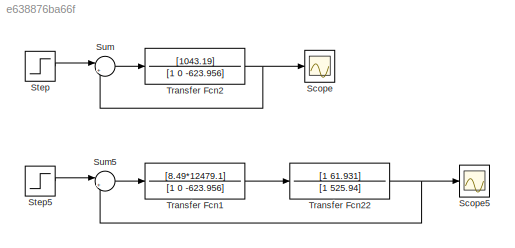
MODEL slx_e638876ba66f
KIND model
CONFIG AbsTol = auto
CONFIG EnableMultiTasking = off
CONFIG FixedStep = auto
CONFIG MaxStep = auto
CONFIG MinStep = auto
CONFIG RelTol = 1e-3
CONFIG SampleTimeConstraint = Unconstrained
CONFIG SolverName = VariableStepAuto
CONFIG StartTime = 0.0
CONFIG StopTime = 0.5
BLOCK [Scope] Scope
  ActiveDisplayYMaximum = 1
  ActiveDisplayYMinimum = -1
  Floating = off
  GraphicalSettings = {"GraphicalSettings":{"LegacySettings":true,"Style":{"Style":{"AxesColor":"[1 1 1]","BackgroundColor":"[1 1 1]","ChannelNames":[""],"ColorOrder":"[0.0666666666666667 0.443137254901961 0.745098039215686;0.866666666666667 0.329411764705882 0;0.929411764705882 0.694117647058824 0.125490196078431;0.52156862745098 0.0862745098039216 0.819607843137255;0.231372549019608 0.666666666666667 0.19607843137254...<+496ch>
  MultipleDisplayCache = [{"MaxYLimMag":1,"MaxYLimReal":1,"MinYLimMag":0,"MinYLimReal":-1,"PlotAsMagnitudePhase":false,"ShowGrid":true,"ShowLegend":false,"Title":"%<SignalLabel>","YLabel":""}]
  NumInputPorts = 1
  WasSavedAsWebScope = on
BLOCK [Scope] Scope5
  ActiveDisplayYMaximum = 1.43906
  ActiveDisplayYMinimum = -0.1599
  DataLoggingVariableName = ScopeData1
  Floating = off
  GraphicalSettings = {"Style":{"BackgroundColor":[1,1,1],"AxesColor":[1,1,1],"LabelsColor":[0,0,0],"PreserveColors":false,"Visible":[true,true,true,true,true,true,true],"LineStyle":["-","-","-","-","-","-","-"],"LineWidth":[1,1.5,1.5,1.5,1.5,1.5,1.5],"BarWidth":[0.9,0.9,0.9,0.9,0.9,0.9,0.9],"LineColor":[[0,0,1],[0.06666666666666667,0.44313725490196076,0.7450980392156863],[0.8666666666666667,0.32941176470588235,0],[0.2...<+2607ch>
  MultipleDisplayCache = [{"MaxYLimMag":1.43906,"MaxYLimReal":1.43906,"MinYLimMag":0,"MinYLimReal":-0.1599,"PlotAsMagnitudePhase":false,"ShowGrid":true,"ShowLegend":false,"Title":"%<SignalLabel>","YLabel":""}]
  NumInputPorts = 1
  ScopeFrameLocation = window
  WasSavedAsWebScope = on
  WindowPosition = [573.000000,270.000000,560.000000,420.000000,]
BLOCK [Step] Step
  SampleTime = 0
BLOCK [Step] Step5
  SampleTime = 0
  Time = 0.1
BLOCK [Sum] Sum
  Inputs = |+-
BLOCK [Sum] Sum5
  Inputs = |+-
BLOCK [TransferFcn] Transfer Fcn1
  Denominator = [1 0 -623.956]
  Numerator = [8.49*12479.1]
BLOCK [TransferFcn] Transfer Fcn2
  Denominator = [1 0 -623.956]
  Numerator = [1043.19]
BLOCK [TransferFcn] Transfer Fcn22
  Denominator = [1 525.94]
  Numerator = [1 61.931]
LINE Step5:1 -> Sum5:1
LINE Step:1 -> Sum:1
LINE Sum5:1 -> Transfer Fcn1:1
LINE Sum:1 -> Transfer Fcn2:1
LINE Transfer Fcn1:1 -> Transfer Fcn22:1
NET Transfer Fcn22:1 -> Scope5:1, Sum5:2
NET Transfer Fcn2:1 -> Scope:1, Sum:2
note: NET lines group one-source signal fan-out (src -> all destinations, sorted); 1:1 wires keep LINE
